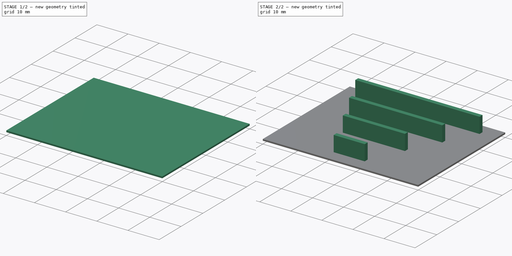
[diagram: build sequence overview — one tinted view per stage of 2, left to right]
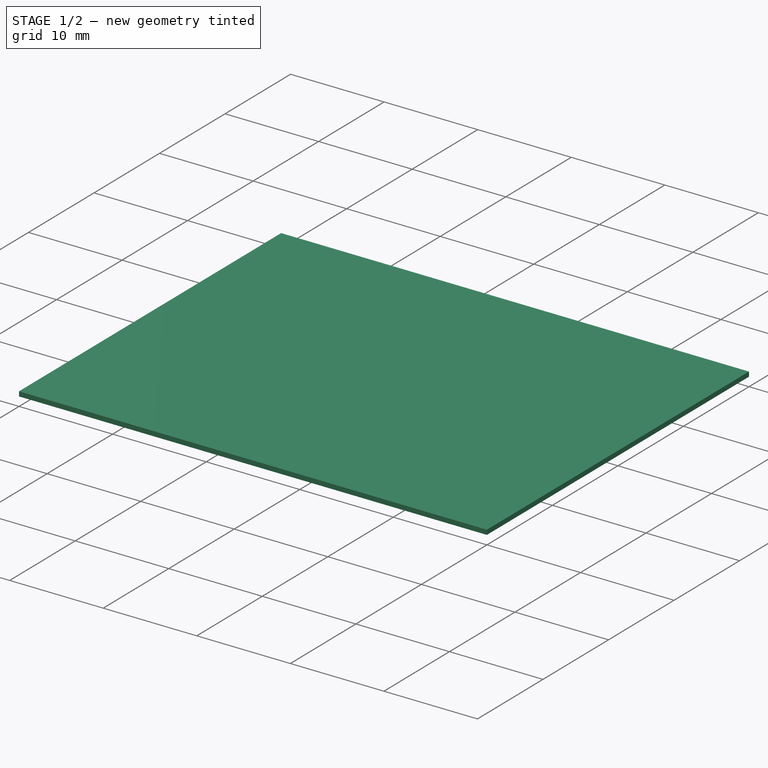
[diagram: stage 1 of 2 — iso view after this stage's code; geometry added in this stage tinted green]
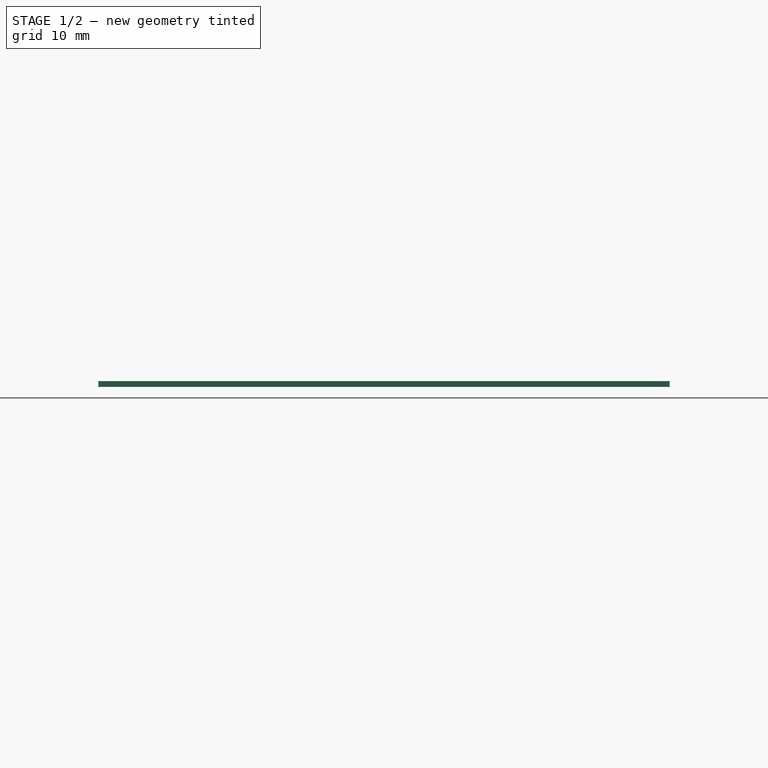
[diagram: stage 1 of 2 — front view after this stage's code; geometry added in this stage tinted green]
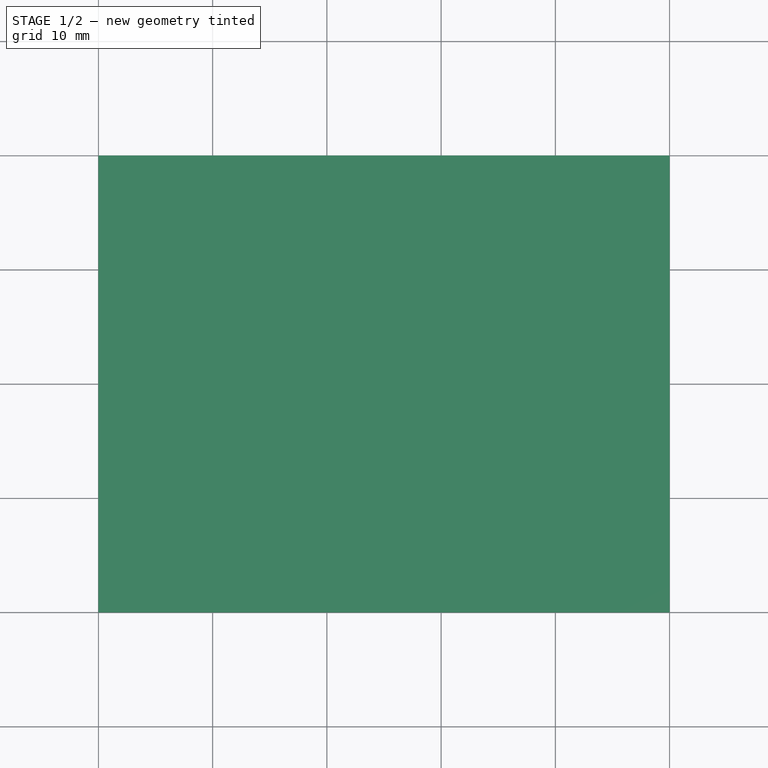
[diagram: stage 1 of 2 — top view after this stage's code; geometry added in this stage tinted green]
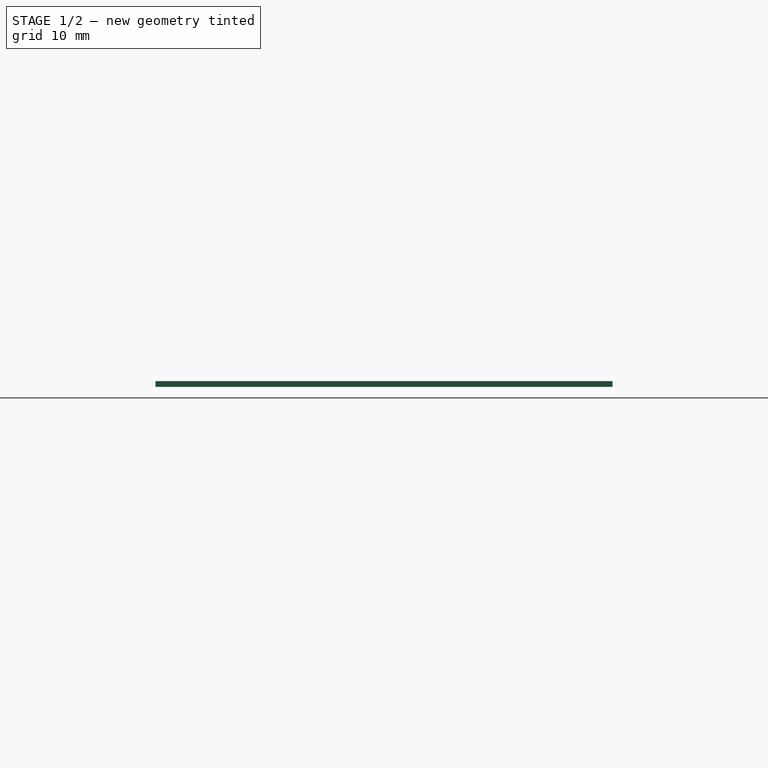
[diagram: stage 1 of 2 — right view after this stage's code; geometry added in this stage tinted green]
FCSTD DOCUMENT  (FreeCAD 0.20R25065 (Git))
Label: gap_fill_min_area
License: All rights reserved
LicenseURL: http://en.wikipedia.org/wiki/All_rights_reserved
objects: Sketcher::SketchObject×2, PartDesign::Pad×2, PartDesign::Body×1
note: 7 computed .brp shape members not serialized (recipe doc carries the construction recipe); baked Part::Feature solids carry a one-line shape summary decoded from their .brp

FEATURE [Sketcher::SketchObject] Sketch
  FullyConstrained = true
  MapMode = 5
  Support = -> [XY_Plane]
  sketch-geometry (4):
    g0: LineSegment StartX=0 StartY=0 StartZ=0 EndX=50 EndY=0 EndZ=0
    g1: LineSegment StartX=50 StartY=0 StartZ=0 EndX=50 EndY=40 EndZ=0
    g2: LineSegment StartX=50 StartY=40 StartZ=0 EndX=0 EndY=40 EndZ=0
    g3: LineSegment StartX=0 StartY=40 StartZ=0 EndX=0 EndY=0 EndZ=0
  constraints (11):
    c: Coincident(g0,g1)
    c: Coincident(g1,g2)
    c: Coincident(g2,g3)
    c: Coincident(g3,g0)
    c: Horizontal(g0)
    c: Horizontal(g2)
    c: Vertical(g1)
    c: Vertical(g3)
    c: Coincident(g0,g-1)
    c: Distance(g3) = 40
    c: Distance(g0) = 50
FEATURE [PartDesign::Pad] Pad
  Direction = (0,0,1)
  Length = 0.5
  Length2 = 100
  Profile = -> Sketch
  Type = 0
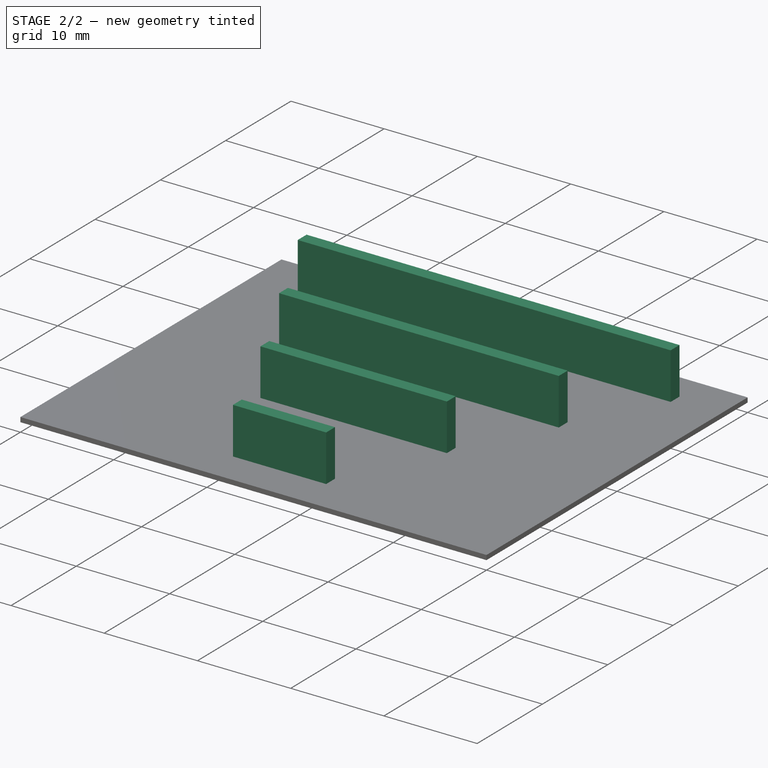
[diagram: stage 2 of 2 — iso view after this stage's code; geometry added in this stage tinted green]
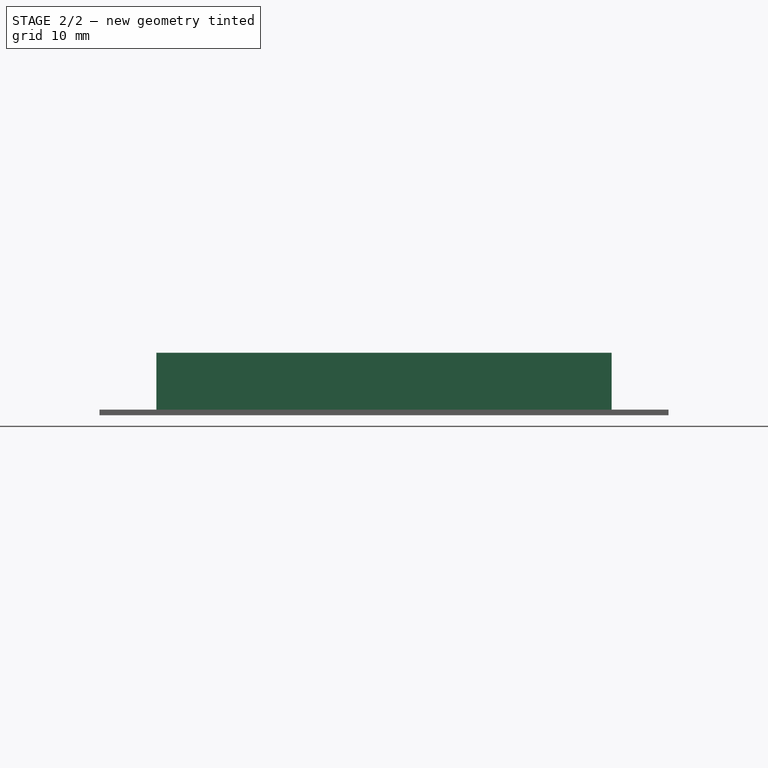
[diagram: stage 2 of 2 — front view after this stage's code; geometry added in this stage tinted green]
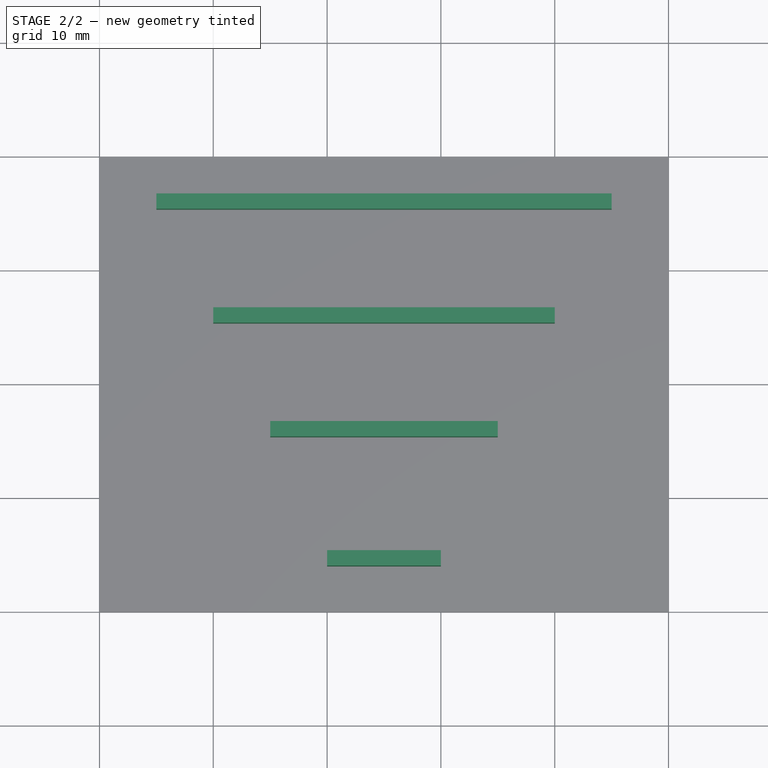
[diagram: stage 2 of 2 — top view after this stage's code; geometry added in this stage tinted green]
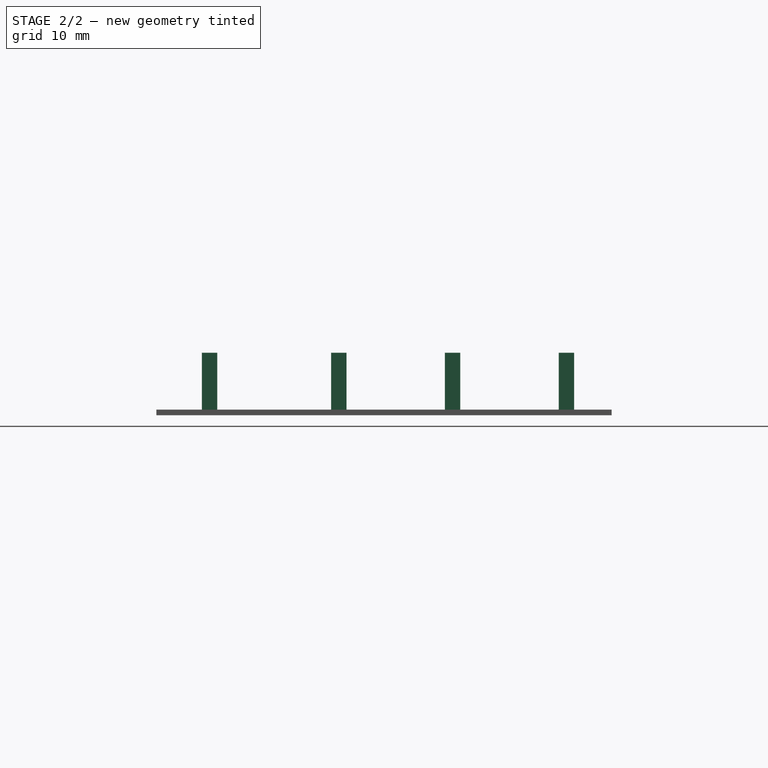
[diagram: stage 2 of 2 — right view after this stage's code; geometry added in this stage tinted green]
FEATURE [Sketcher::SketchObject] Sketch001
  FullyConstrained = false
  MapMode = 5
  Placement = pos=(0,0,0.5) rot=(0,0,1;0rad)
  Support = -> [Pad]
  sketch-geometry (26):
    g0: LineSegment StartX=30 StartY=5.35 StartZ=0 EndX=30 EndY=4 EndZ=0
    g1: LineSegment StartX=30 StartY=4 StartZ=0 EndX=20 EndY=4 EndZ=0
    g2: LineSegment StartX=20 StartY=4 StartZ=0 EndX=20 EndY=5.35 EndZ=0
    g3: LineSegment StartX=35 StartY=15.35 StartZ=0 EndX=35 EndY=16.7 EndZ=0
    g4: LineSegment StartX=15 StartY=16.7 StartZ=0 EndX=15 EndY=15.35 EndZ=0
    g5: LineSegment StartX=40 StartY=25.35 StartZ=0 EndX=40 EndY=26.7 EndZ=0
    g6: LineSegment StartX=10 StartY=26.7 StartZ=0 EndX=10 EndY=25.35 EndZ=0
    g7: LineSegment StartX=5 StartY=35.35 StartZ=0 EndX=45 EndY=35.35 EndZ=0
    g8: LineSegment StartX=45 StartY=35.35 StartZ=0 EndX=45 EndY=36.7 EndZ=0
    g9: LineSegment StartX=5 StartY=36.7 StartZ=0 EndX=5 EndY=35.35 EndZ=0
    g10: LineSegment StartX=25 StartY=5.35 StartZ=0 EndX=25 EndY=16.7 EndZ=0
    g11: LineSegment StartX=25 StartY=15.35 StartZ=0 EndX=25 EndY=26.7 EndZ=0
    g12: LineSegment StartX=25 StartY=25.35 StartZ=0 EndX=25 EndY=36.7 EndZ=0
    g13: LineSegment StartX=30 StartY=5.35 StartZ=0 EndX=25 EndY=5.35 EndZ=0
    g14: LineSegment StartX=25 StartY=5.35 StartZ=0 EndX=20 EndY=5.35 EndZ=0
    g15: LineSegment StartX=25 StartY=16.7 StartZ=0 EndX=15 EndY=16.7 EndZ=0
    g16: LineSegment StartX=25 StartY=15.35 StartZ=0 EndX=15 EndY=15.35 EndZ=0
    g17: LineSegment StartX=25 StartY=26.7 StartZ=0 EndX=10 EndY=26.7 EndZ=0
    g18: LineSegment StartX=25 StartY=25.35 StartZ=0 EndX=10 EndY=25.35 EndZ=0
    g19: LineSegment StartX=25 StartY=36.7 StartZ=0 EndX=5 EndY=36.7 EndZ=0
    g20: LineSegment StartX=25 StartY=36.7 StartZ=0 EndX=45 EndY=36.7 EndZ=0
    g21: LineSegment StartX=40 StartY=25.35 StartZ=0 EndX=25 EndY=25.35 EndZ=0
    g22: LineSegment StartX=40 StartY=26.7 StartZ=0 EndX=25 EndY=26.7 EndZ=0
    g23: LineSegment StartX=35 StartY=15.35 StartZ=0 EndX=25 EndY=15.35 EndZ=0
    g24: LineSegment StartX=35 StartY=16.7 StartZ=0 EndX=25 EndY=16.7 EndZ=0
    g25: LineSegment StartX=25 StartY=5.35 StartZ=0 EndX=25 EndY=11.948 EndZ=0
  constraints (74):
    c: Coincident(g0,g1)
    c: Coincident(g1,g2)
    c: Horizontal(g1)
    c: Vertical(g0)
    c: Vertical(g2)
    c: Vertical(g3)
    c: Vertical(g4)
    c: Vertical(g5)
    c: Vertical(g6)
    c: Coincident(g7,g8)
    c: Coincident(g9,g7)
    c: Horizontal(g7)
    c: Vertical(g8)
    c: Vertical(g9)
    c: Vertical(g10)
    c: Vertical(g11)
    c: Vertical(g12)
    c: Equal(g0,g3)
    c: Equal(g3,g5)
    c: Equal(g5,g8)
    c: Equal(g10,g11)
    c: Equal(g11,g12)
    c: DistanceY(g-1,g1) = 4
    c: Coincident(g13,g0)
    c: Coincident(g13,g10)
    c: Horizontal(g13)
    c: Coincident(g14,g13)
    c: Coincident(g14,g2)
    c: Horizontal(g14)
    c: Equal(g13,g14)
    c: Coincident(g15,g10)
    c: Coincident(g15,g4)
    c: Horizontal(g15)
    c: Coincident(g16,g11)
    c: Coincident(g16,g4)
    c: Horizontal(g16)
    c: Coincident(g17,g11)
    c: Coincident(g17,g6)
    c: Horizontal(g17)
    c: Coincident(g18,g12)
    c: Coincident(g18,g6)
    c: Horizontal(g18)
    c: Coincident(g19,g12)
    c: Coincident(g19,g9)
    c: Horizontal(g19)
    c: Coincident(g20,g19)
    c: Coincident(g20,g8)
    c: Horizontal(g20)
    c: Coincident(g21,g5)
    c: Coincident(g21,g18)
    c: Horizontal(g21)
    c: Coincident(g22,g5)
    c: Coincident(g22,g17)
    c: Horizontal(g22)
    c: Coincident(g23,g3)
    c: Coincident(g23,g16)
    c: Horizontal(g23)
    c: Coincident(g24,g3)
    c: Coincident(g24,g15)
    c: Horizontal(g24)
    c: DistanceX(g-1,g13) = 25
    c: Equal(g24,g15)
    c: Equal(g22,g17)
    c: Equal(g20,g19)
    c: Coincident(g25,g13)
    c: Vertical(g25)
    c: PointOnObject(g16,g25)
    c: PointOnObject(g18,g25)
    c: Distance(g7) = 40
    c: DistanceX(g6,g5) = 30
    c: DistanceX(g4,g3) = 20
    c: DistanceX(g2,g0) = 10
    c: DistanceY(g0,g0) = 1.35
    c: DistanceY(g0,g3) = 10
FEATURE [PartDesign::Pad] Pad001
  BaseFeature = -> Pad
  Direction = (0,0,1)
  Length = 5
  Length2 = 100
  Profile = -> Sketch001
  Type = 0
FEATURE [PartDesign::Body] Body  label="gap_fill_min_area"
  Group = -> [Sketch,Pad,Sketch001,Pad001]
  Origin = -> Origin
  Tip = -> Pad001
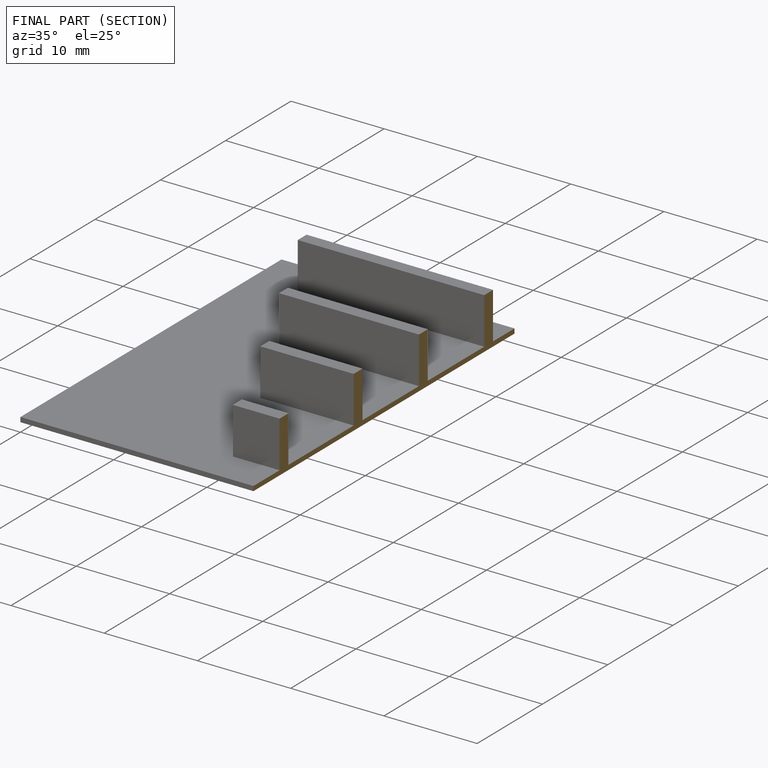
[diagram: finished part — half-section view (interior)]
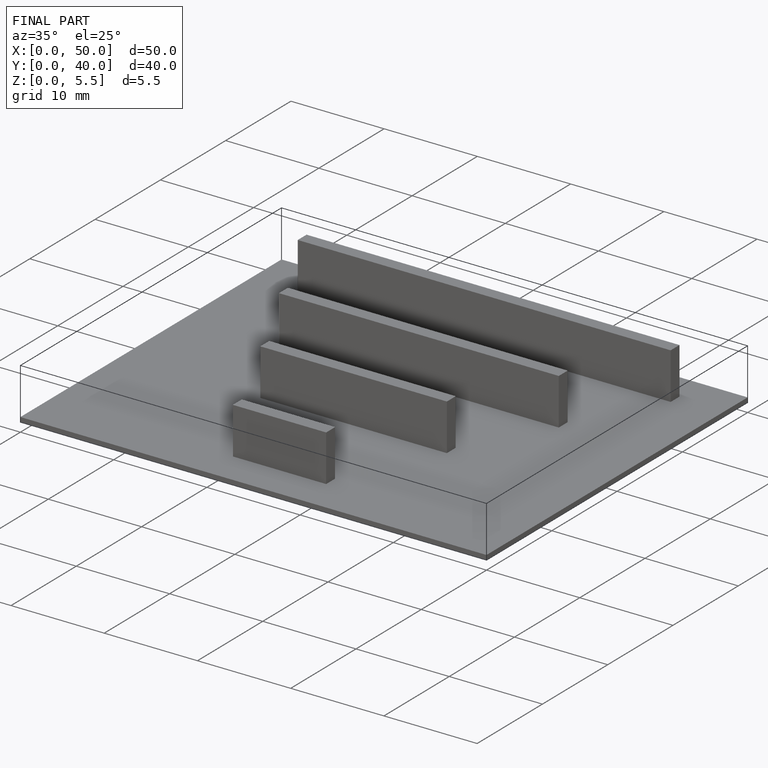
[diagram: finished part — iso view with bounding-box wireframe]
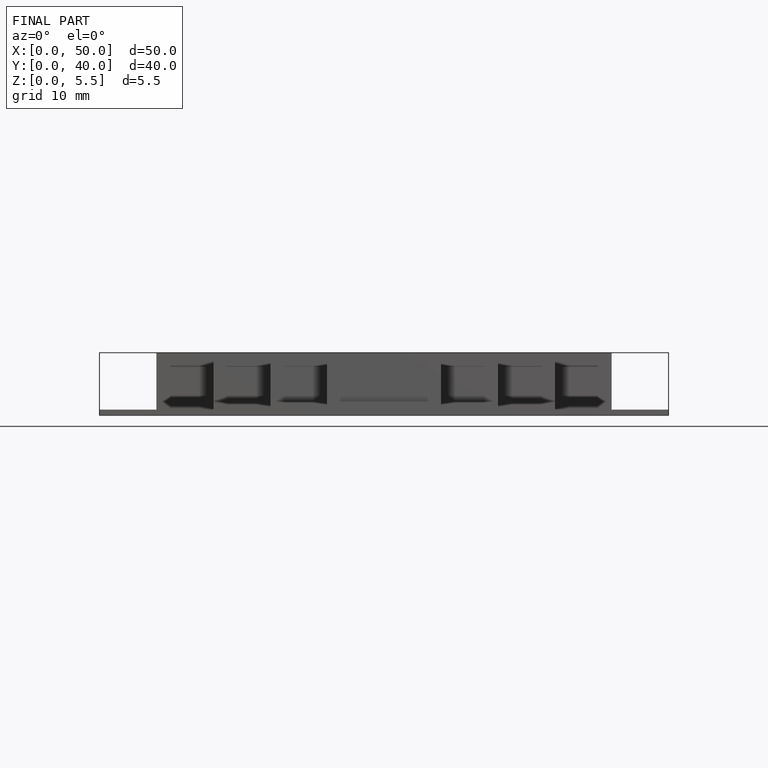
[diagram: finished part — front view with bounding-box wireframe]
